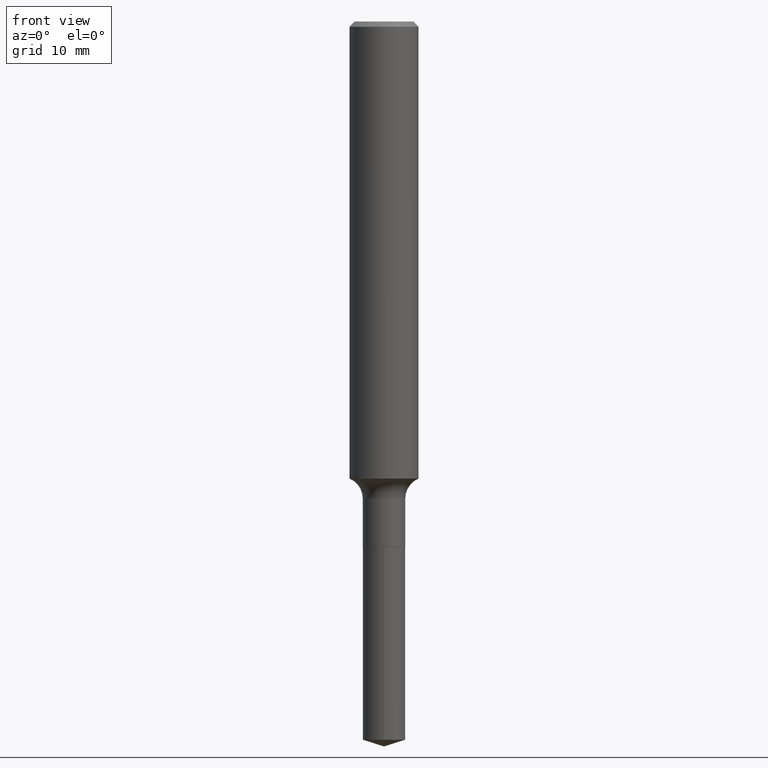
[diagram: clean part render]
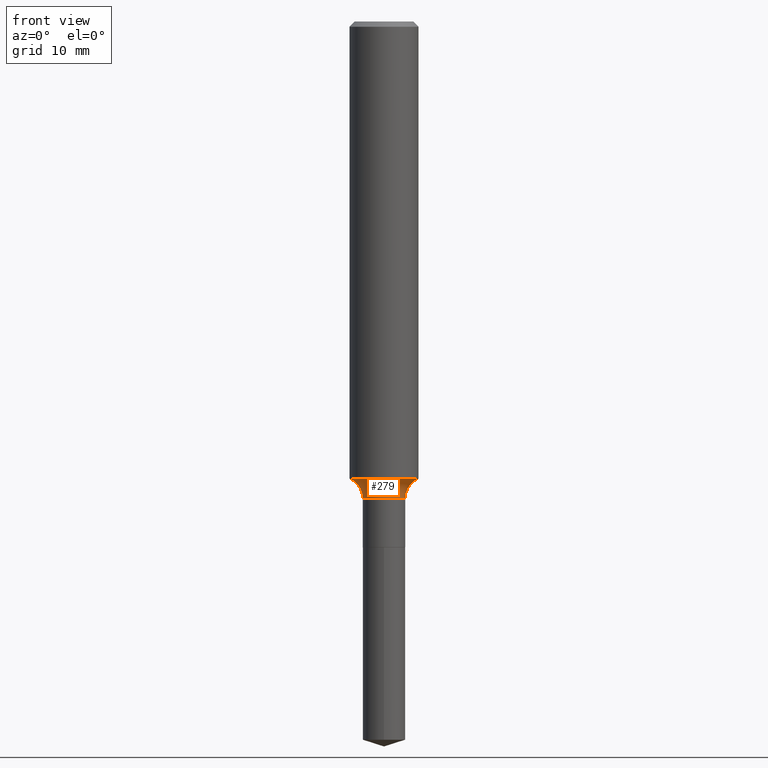
[diagram: same view with one face highlighted and labeled with its STEP entity id]
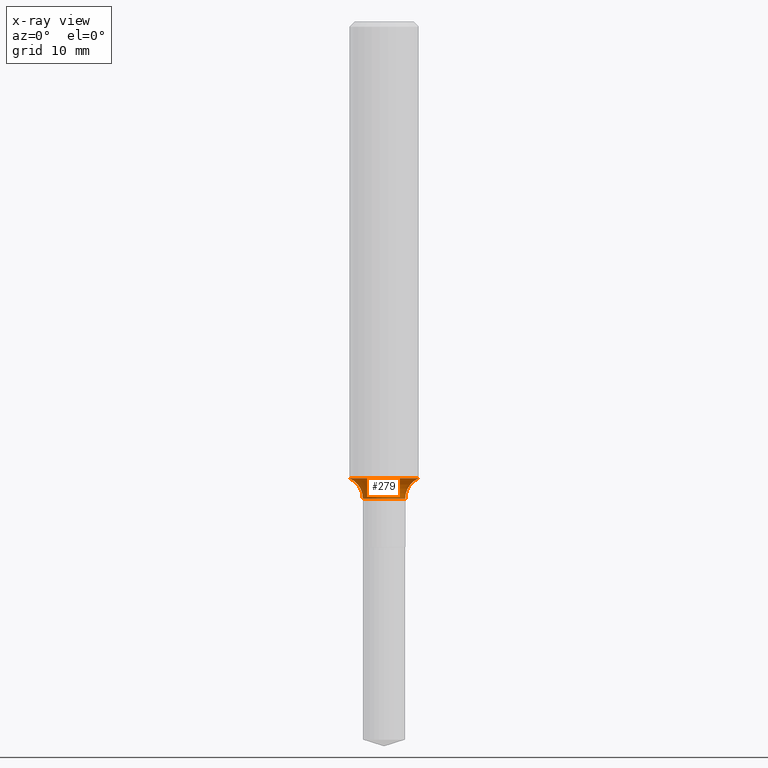
[diagram: x-ray of the same camera — body ghosted, the highlighted face saturated]
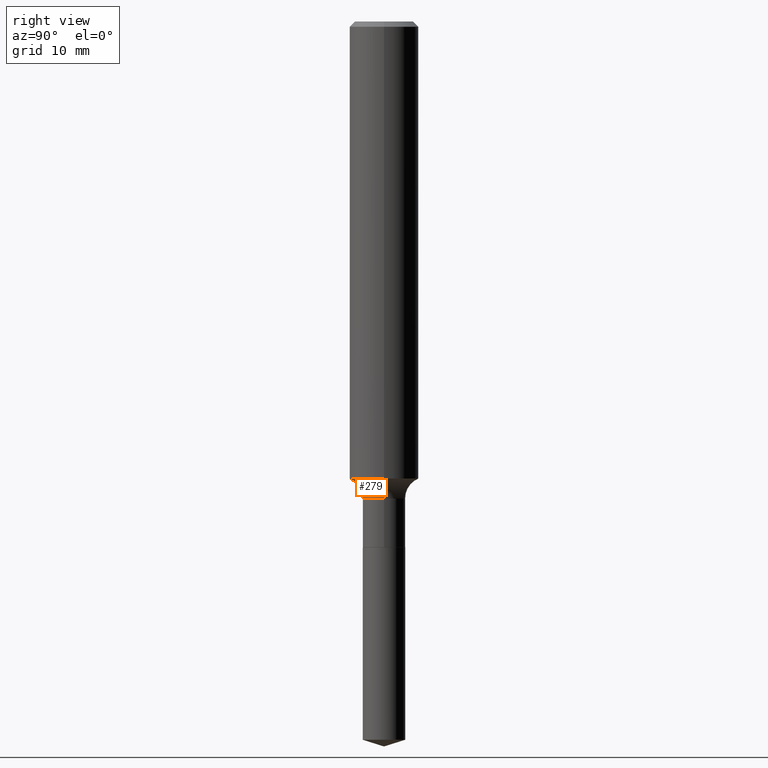
[diagram: same view with one face highlighted and labeled with its STEP entity id]
A machine part, front view. The second image highlights one B-rep face of the part: STEP entity #279.
The next image is the same camera in x-ray: the body ghosted, the highlighted face saturated — about 0% of this face is hidden behind the body in this view.
A second angle (right view) of the same face is appended — the face is thin or edge-on in the first view.
In plain terms, the highlighted toroidal blend (fillet) surface has major radius 3.937 mm and minor (blend) radius 1.9812 mm.
Its self-contained STEP definition (entity closure, byte-faithful):
#5 = ORIENTED_EDGE ( 'NONE', *, *, #262, .F. ) ;
#27 = VERTEX_POINT ( 'NONE', #313 ) ;
#29 = EDGE_CURVE ( 'NONE', #419, #343, #310, .T. ) ;
#39 = AXIS2_PLACEMENT_3D ( 'NONE', #87, #307, #318 ) ;
#60 = DIRECTION ( 'NONE',  ( -2.445468806185136597E-29, 3.491481338843145583E-15, 1.000000000000000000 ) ) ;
#80 = CIRCLE ( 'NONE', #274, 0.07800000000000006928 ) ;
#87 = CARTESIAN_POINT ( 'NONE',  ( -0.1549999999999999989, -4.928097883620073362E-15, -1.726900000000000102 ) ) ;
#99 = DIRECTION ( 'NONE',  ( 1.000000000000000000, -6.982962677686264344E-15, 0.000000000000000000 ) ) ;
#131 = CARTESIAN_POINT ( 'NONE',  ( -0.07699999999999997125, -5.790619019732800574E-15, -1.726900000000000102 ) ) ;
#140 = CARTESIAN_POINT ( 'NONE',  ( 0.1250000000000002776, -6.650922802362306987E-15, -1.654899999999999816 ) ) ;
#142 = CARTESIAN_POINT ( 'NONE',  ( -0.1250000000000002776, -4.889874047951393683E-15, -1.654899999999999816 ) ) ;
#186 = AXIS2_PLACEMENT_3D ( 'NONE', #253, #60, #360 ) ;
#208 = DIRECTION ( 'NONE',  ( -6.982962677686266711E-15, -1.000000000000000000, 3.491481338843145583E-15 ) ) ;
#212 = DIRECTION ( 'NONE',  ( -2.445468806185136597E-29, 3.491481338843145583E-15, 1.000000000000000000 ) ) ;
#216 = CARTESIAN_POINT ( 'NONE',  ( 4.223080081401112602E-29, -6.029439124048228051E-15, -1.726900000000000102 ) ) ;
#231 = EDGE_CURVE ( 'NONE', #435, #27, #80, .T. ) ;
#249 = TOROIDAL_SURFACE ( 'NONE', #377, 0.1549999999999999989, 0.07800000000000006928 ) ;
#253 = CARTESIAN_POINT ( 'NONE',  ( 4.047006327355782261E-29, -5.778052467651521282E-15, -1.654899999999999816 ) ) ;
#257 = CARTESIAN_POINT ( 'NONE',  ( 4.223080081401112602E-29, -6.029439124048228051E-15, -1.726900000000000102 ) ) ;
#258 = AXIS2_PLACEMENT_3D ( 'NONE', #257, #409, #334 ) ;
#262 = EDGE_CURVE ( 'NONE', #419, #435, #283, .T. ) ;
#274 = AXIS2_PLACEMENT_3D ( 'NONE', #322, #208, #99 ) ;
#275 = CIRCLE ( 'NONE', #258, 0.07699999999999997125 ) ;
#279 = ADVANCED_FACE ( 'NONE', ( #476 ), #249, .F. ) ;
#283 = CIRCLE ( 'NONE', #186, 0.1250000000000001943 ) ;
#307 = DIRECTION ( 'NONE',  ( 7.105427357601001859E-15, 1.000000000000000000, -3.491481338843145583E-15 ) ) ;
#310 = CIRCLE ( 'NONE', #39, 0.07800000000000006928 ) ;
#313 = CARTESIAN_POINT ( 'NONE',  ( 0.07699999999999997125, -6.567127250230070871E-15, -1.726900000000000102 ) ) ;
#318 = DIRECTION ( 'NONE',  ( -1.000000000000000000, 7.105427357601005014E-15, 0.000000000000000000 ) ) ;
#322 = CARTESIAN_POINT ( 'NONE',  ( 0.1549999999999999989, -7.111798339089599706E-15, -1.726900000000000102 ) ) ;
#334 = DIRECTION ( 'NONE',  ( 1.000000000000000000, -6.982962677686273021E-15, 0.000000000000000000 ) ) ;
#343 = VERTEX_POINT ( 'NONE', #131 ) ;
#360 = DIRECTION ( 'NONE',  ( 1.000000000000000000, -6.982962677686267499E-15, 0.000000000000000000 ) ) ;
#377 = AXIS2_PLACEMENT_3D ( 'NONE', #216, #212, #404 ) ;
#400 = EDGE_LOOP ( 'NONE', ( #5, #475, #470, #450 ) ) ;
#404 = DIRECTION ( 'NONE',  ( 1.000000000000000000, -6.982962677686269077E-15, 4.883557194083112901E-29 ) ) ;
#409 = DIRECTION ( 'NONE',  ( -2.445468806185136597E-29, 3.491481338843145583E-15, 1.000000000000000000 ) ) ;
#419 = VERTEX_POINT ( 'NONE', #142 ) ;
#435 = VERTEX_POINT ( 'NONE', #140 ) ;
#450 = ORIENTED_EDGE ( 'NONE', *, *, #231, .F. ) ;
#469 = EDGE_CURVE ( 'NONE', #343, #27, #275, .T. ) ;
#470 = ORIENTED_EDGE ( 'NONE', *, *, #469, .T. ) ;
#475 = ORIENTED_EDGE ( 'NONE', *, *, #29, .T. ) ;
#476 = FACE_OUTER_BOUND ( 'NONE', #400, .T. ) ;